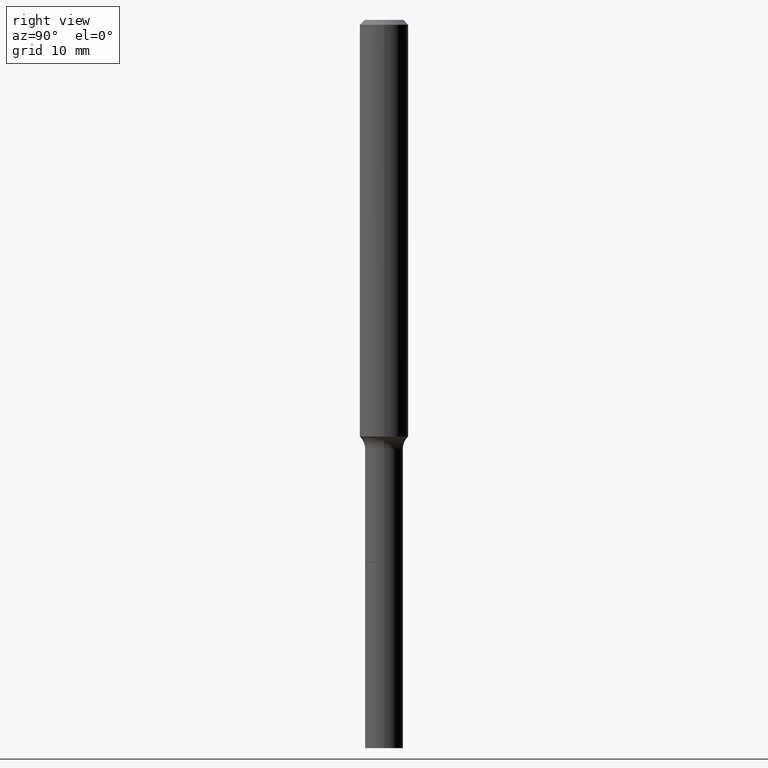
[diagram: clean part render]
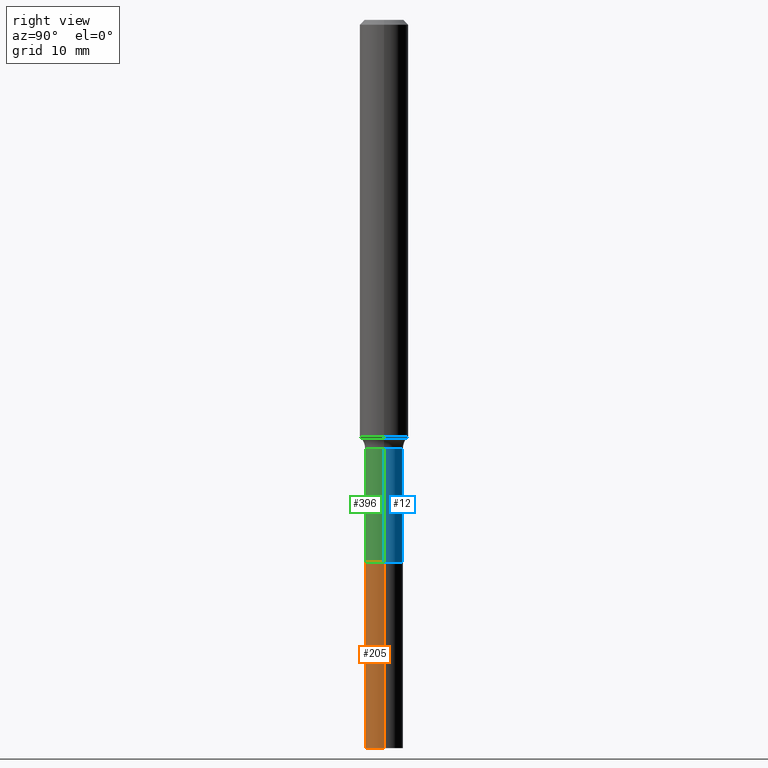
[diagram: same view with three faces highlighted in distinct colors, each labeled with its STEP entity id]
A machine part, right view with three faces highlighted in distinct colors.
Their STEP definitions:

[orange] entity #205 — the highlighted cylindrical surface (edge-blend (fillet) strip) has radius 2.3495 mm, axis along (-0, 0, 1).
#5 = ORIENTED_EDGE ( 'NONE', *, *, #459, .F. ) ;
#6 = CARTESIAN_POINT ( 'NONE',  ( -0.09250000000000022093, -1.013421849151829643E-14, -3.543299999999999894 ) ) ;
#21 = VECTOR ( 'NONE', #23, 39.37007874015748143 ) ;
#23 = DIRECTION ( 'NONE',  ( -2.445468806185136877E-29, 3.491481338843145188E-15, 1.000000000000000000 ) ) ;
#34 = AXIS2_PLACEMENT_3D ( 'NONE', #321, #511, #307 ) ;
#46 = EDGE_CURVE ( 'NONE', #84, #366, #299, .T. ) ;
#59 = AXIS2_PLACEMENT_3D ( 'NONE', #228, #485, #66 ) ;
#66 = DIRECTION ( 'NONE',  ( 1.000000000000000000, -6.982962677686265133E-15, 0.000000000000000000 ) ) ;
#79 = VERTEX_POINT ( 'NONE', #440 ) ;
#84 = VERTEX_POINT ( 'NONE', #6 ) ;
#96 = VECTOR ( 'NONE', #488, 39.37007874015748143 ) ;
#115 = CARTESIAN_POINT ( 'NONE',  ( 6.451880351358246032E-29, -9.211575216269870974E-15, -2.638300000000000090 ) ) ;
#130 = ORIENTED_EDGE ( 'NONE', *, *, #221, .T. ) ;
#194 = FACE_OUTER_BOUND ( 'NONE', #432, .T. ) ;
#205 = ADVANCED_FACE ( 'NONE', ( #194 ), #357, .T. ) ;
#221 = EDGE_CURVE ( 'NONE', #406, #79, #257, .T. ) ;
#228 = CARTESIAN_POINT ( 'NONE',  ( 6.451880351358246032E-29, -9.211575216269870974E-15, -2.638300000000000090 ) ) ;
#238 = DIRECTION ( 'NONE',  ( -2.445468806185136597E-29, 3.491481338843145583E-15, 1.000000000000000000 ) ) ;
#257 = LINE ( 'NONE', #300, #21 ) ;
#299 = LINE ( 'NONE', #461, #96 ) ;
#300 = CARTESIAN_POINT ( 'NONE',  ( 0.09250000000000010991, -9.857499263955849382E-15, -2.638300000000000090 ) ) ;
#307 = DIRECTION ( 'NONE',  ( 1.000000000000000000, -6.982962677686269077E-15, 0.000000000000000000 ) ) ;
#311 = CIRCLE ( 'NONE', #34, 0.09250000000000022093 ) ;
#312 = CARTESIAN_POINT ( 'NONE',  ( 0.09250000000000022093, -1.301728987560889706E-14, -3.543299999999999894 ) ) ;
#321 = CARTESIAN_POINT ( 'NONE',  ( 8.665029620955794069E-29, -1.237136582792291707E-14, -3.543299999999999894 ) ) ;
#335 = AXIS2_PLACEMENT_3D ( 'NONE', #115, #238, #405 ) ;
#344 = CARTESIAN_POINT ( 'NONE',  ( -0.09249999999999999889, -1.013421849151830116E-14, -2.638300000000000090 ) ) ;
#357 = CYLINDRICAL_SURFACE ( 'NONE', #335, 0.09250000000000010991 ) ;
#366 = VERTEX_POINT ( 'NONE', #344 ) ;
#405 = DIRECTION ( 'NONE',  ( 1.000000000000000000, -6.982962677686256455E-15, 0.000000000000000000 ) ) ;
#406 = VERTEX_POINT ( 'NONE', #312 ) ;
#425 = EDGE_CURVE ( 'NONE', #84, #406, #311, .T. ) ;
#432 = EDGE_LOOP ( 'NONE', ( #441, #439, #130, #5 ) ) ;
#434 = CIRCLE ( 'NONE', #59, 0.09249999999999999889 ) ;
#439 = ORIENTED_EDGE ( 'NONE', *, *, #425, .T. ) ;
#440 = CARTESIAN_POINT ( 'NONE',  ( 0.09249999999999999889, -9.857499263955849382E-15, -2.638300000000000090 ) ) ;
#441 = ORIENTED_EDGE ( 'NONE', *, *, #46, .F. ) ;
#459 = EDGE_CURVE ( 'NONE', #366, #79, #434, .T. ) ;
#461 = CARTESIAN_POINT ( 'NONE',  ( -0.09250000000000010991, -8.554323185691776535E-15, -2.638300000000000090 ) ) ;
#485 = DIRECTION ( 'NONE',  ( -2.445468806185136597E-29, 3.491481338843145583E-15, 1.000000000000000000 ) ) ;
#488 = DIRECTION ( 'NONE',  ( -2.445468806185136877E-29, 3.491481338843145188E-15, 1.000000000000000000 ) ) ;
#511 = DIRECTION ( 'NONE',  ( -2.445468806185136597E-29, 3.491481338843145583E-15, 1.000000000000000000 ) ) ;

[blue] entity #12 — the highlighted cylindrical surface (edge-blend (fillet) strip) has radius 2.3495 mm, axis along (-0, 0, 1).
#12 = ADVANCED_FACE ( 'NONE', ( #410 ), #379, .T. ) ;
#13 = LINE ( 'NONE', #413, #226 ) ;
#22 = VECTOR ( 'NONE', #168, 39.37007874015748143 ) ;
#40 = CARTESIAN_POINT ( 'NONE',  ( -0.09249999999999992950, -7.589801465836359131E-15, -2.086299999999999599 ) ) ;
#89 = CIRCLE ( 'NONE', #129, 0.09249999999999992950 ) ;
#99 = EDGE_CURVE ( 'NONE', #296, #190, #13, .T. ) ;
#104 = AXIS2_PLACEMENT_3D ( 'NONE', #173, #452, #337 ) ;
#106 = CARTESIAN_POINT ( 'NONE',  ( 6.450657616955153231E-29, -9.209829475600448681E-15, -2.637799999999999923 ) ) ;
#129 = AXIS2_PLACEMENT_3D ( 'NONE', #468, #218, #137 ) ;
#137 = DIRECTION ( 'NONE',  ( 1.000000000000000000, -6.982962677686269866E-15, 0.000000000000000000 ) ) ;
#139 = LINE ( 'NONE', #386, #22 ) ;
#147 = ORIENTED_EDGE ( 'NONE', *, *, #382, .F. ) ;
#168 = DIRECTION ( 'NONE',  ( -2.445468806185136877E-29, 3.491481338843145188E-15, 1.000000000000000000 ) ) ;
#173 = CARTESIAN_POINT ( 'NONE',  ( 0.000000000000000000, 0.000000000000000000, 0.000000000000000000 ) ) ;
#190 = VERTEX_POINT ( 'NONE', #40 ) ;
#218 = DIRECTION ( 'NONE',  ( -2.445468806185136597E-29, 3.491481338843145583E-15, 1.000000000000000000 ) ) ;
#223 = DIRECTION ( 'NONE',  ( -2.445468806185136597E-29, 3.491481338843145583E-15, 1.000000000000000000 ) ) ;
#226 = VECTOR ( 'NONE', #232, 39.37007874015748143 ) ;
#227 = AXIS2_PLACEMENT_3D ( 'NONE', #106, #223, #388 ) ;
#232 = DIRECTION ( 'NONE',  ( -2.445468806185136877E-29, 3.491481338843145188E-15, 1.000000000000000000 ) ) ;
#236 = ORIENTED_EDGE ( 'NONE', *, *, #397, .T. ) ;
#239 = VERTEX_POINT ( 'NONE', #378 ) ;
#296 = VERTEX_POINT ( 'NONE', #506 ) ;
#306 = EDGE_CURVE ( 'NONE', #517, #190, #89, .T. ) ;
#323 = ORIENTED_EDGE ( 'NONE', *, *, #306, .F. ) ;
#337 = DIRECTION ( 'NONE',  ( 1.000000000000000000, -6.982962677686266711E-15, 4.876176775795935232E-29 ) ) ;
#361 = EDGE_LOOP ( 'NONE', ( #236, #435, #323, #147 ) ) ;
#378 = CARTESIAN_POINT ( 'NONE',  ( 0.09249999999999999889, -9.855753523286427090E-15, -2.637799999999999923 ) ) ;
#379 = CYLINDRICAL_SURFACE ( 'NONE', #104, 0.09249999999999997113 ) ;
#382 = EDGE_CURVE ( 'NONE', #239, #517, #139, .T. ) ;
#386 = CARTESIAN_POINT ( 'NONE',  ( 0.09249999999999997113, -6.459240476859794932E-16, 4.510463517611238647E-30 ) ) ;
#388 = DIRECTION ( 'NONE',  ( 1.000000000000000000, -6.982962677686265133E-15, 0.000000000000000000 ) ) ;
#390 = CARTESIAN_POINT ( 'NONE',  ( 0.09249999999999992950, -7.930201564914433712E-15, -2.086299999999999599 ) ) ;
#397 = EDGE_CURVE ( 'NONE', #239, #296, #471, .T. ) ;
#410 = FACE_OUTER_BOUND ( 'NONE', #361, .T. ) ;
#413 = CARTESIAN_POINT ( 'NONE',  ( -0.09249999999999997113, 6.572520305780924668E-16, -4.550014958485786069E-30 ) ) ;
#435 = ORIENTED_EDGE ( 'NONE', *, *, #99, .T. ) ;
#452 = DIRECTION ( 'NONE',  ( -2.445468806185136597E-29, 3.491481338843145583E-15, 1.000000000000000000 ) ) ;
#468 = CARTESIAN_POINT ( 'NONE',  ( 5.101981570344049922E-29, -7.284277517228453725E-15, -2.086299999999999599 ) ) ;
#471 = CIRCLE ( 'NONE', #227, 0.09249999999999999889 ) ;
#506 = CARTESIAN_POINT ( 'NONE',  ( -0.09249999999999999889, -7.589801465836359131E-15, -2.637799999999999923 ) ) ;
#517 = VERTEX_POINT ( 'NONE', #390 ) ;

[green] entity #396 — the highlighted cylindrical surface (edge-blend (fillet) strip) has radius 2.3495 mm, axis along (-0, 0, 1).
#13 = LINE ( 'NONE', #413, #226 ) ;
#22 = VECTOR ( 'NONE', #168, 39.37007874015748143 ) ;
#40 = CARTESIAN_POINT ( 'NONE',  ( -0.09249999999999992950, -7.589801465836359131E-15, -2.086299999999999599 ) ) ;
#47 = CIRCLE ( 'NONE', #422, 0.09249999999999999889 ) ;
#51 = ORIENTED_EDGE ( 'NONE', *, *, #63, .T. ) ;
#63 = EDGE_CURVE ( 'NONE', #296, #239, #47, .T. ) ;
#87 = ORIENTED_EDGE ( 'NONE', *, *, #382, .T. ) ;
#90 = CARTESIAN_POINT ( 'NONE',  ( 6.450657616955153231E-29, -9.209829475600448681E-15, -2.637799999999999923 ) ) ;
#99 = EDGE_CURVE ( 'NONE', #296, #190, #13, .T. ) ;
#121 = DIRECTION ( 'NONE',  ( 1.000000000000000000, -6.982962677686265133E-15, 0.000000000000000000 ) ) ;
#139 = LINE ( 'NONE', #386, #22 ) ;
#144 = DIRECTION ( 'NONE',  ( 1.000000000000000000, -6.982962677686266711E-15, 4.876176775795935232E-29 ) ) ;
#148 = EDGE_CURVE ( 'NONE', #190, #517, #233, .T. ) ;
#168 = DIRECTION ( 'NONE',  ( -2.445468806185136877E-29, 3.491481338843145188E-15, 1.000000000000000000 ) ) ;
#190 = VERTEX_POINT ( 'NONE', #40 ) ;
#196 = CARTESIAN_POINT ( 'NONE',  ( 5.101981570344049922E-29, -7.284277517228453725E-15, -2.086299999999999599 ) ) ;
#222 = DIRECTION ( 'NONE',  ( -2.445468806185136597E-29, 3.491481338843145583E-15, 1.000000000000000000 ) ) ;
#226 = VECTOR ( 'NONE', #232, 39.37007874015748143 ) ;
#232 = DIRECTION ( 'NONE',  ( -2.445468806185136877E-29, 3.491481338843145188E-15, 1.000000000000000000 ) ) ;
#233 = CIRCLE ( 'NONE', #271, 0.09249999999999992950 ) ;
#239 = VERTEX_POINT ( 'NONE', #378 ) ;
#247 = DIRECTION ( 'NONE',  ( -2.445468806185136597E-29, 3.491481338843145583E-15, 1.000000000000000000 ) ) ;
#259 = AXIS2_PLACEMENT_3D ( 'NONE', #516, #222, #144 ) ;
#268 = ORIENTED_EDGE ( 'NONE', *, *, #148, .F. ) ;
#271 = AXIS2_PLACEMENT_3D ( 'NONE', #196, #329, #360 ) ;
#280 = CYLINDRICAL_SURFACE ( 'NONE', #259, 0.09249999999999997113 ) ;
#296 = VERTEX_POINT ( 'NONE', #506 ) ;
#329 = DIRECTION ( 'NONE',  ( -2.445468806185136597E-29, 3.491481338843145583E-15, 1.000000000000000000 ) ) ;
#360 = DIRECTION ( 'NONE',  ( 1.000000000000000000, -6.982962677686269866E-15, 0.000000000000000000 ) ) ;
#378 = CARTESIAN_POINT ( 'NONE',  ( 0.09249999999999999889, -9.855753523286427090E-15, -2.637799999999999923 ) ) ;
#382 = EDGE_CURVE ( 'NONE', #239, #517, #139, .T. ) ;
#386 = CARTESIAN_POINT ( 'NONE',  ( 0.09249999999999997113, -6.459240476859794932E-16, 4.510463517611238647E-30 ) ) ;
#390 = CARTESIAN_POINT ( 'NONE',  ( 0.09249999999999992950, -7.930201564914433712E-15, -2.086299999999999599 ) ) ;
#396 = ADVANCED_FACE ( 'NONE', ( #501 ), #280, .T. ) ;
#413 = CARTESIAN_POINT ( 'NONE',  ( -0.09249999999999997113, 6.572520305780924668E-16, -4.550014958485786069E-30 ) ) ;
#414 = EDGE_LOOP ( 'NONE', ( #476, #51, #87, #268 ) ) ;
#422 = AXIS2_PLACEMENT_3D ( 'NONE', #90, #247, #121 ) ;
#476 = ORIENTED_EDGE ( 'NONE', *, *, #99, .F. ) ;
#501 = FACE_OUTER_BOUND ( 'NONE', #414, .T. ) ;
#506 = CARTESIAN_POINT ( 'NONE',  ( -0.09249999999999999889, -7.589801465836359131E-15, -2.637799999999999923 ) ) ;
#516 = CARTESIAN_POINT ( 'NONE',  ( 0.000000000000000000, 0.000000000000000000, 0.000000000000000000 ) ) ;
#517 = VERTEX_POINT ( 'NONE', #390 ) ;